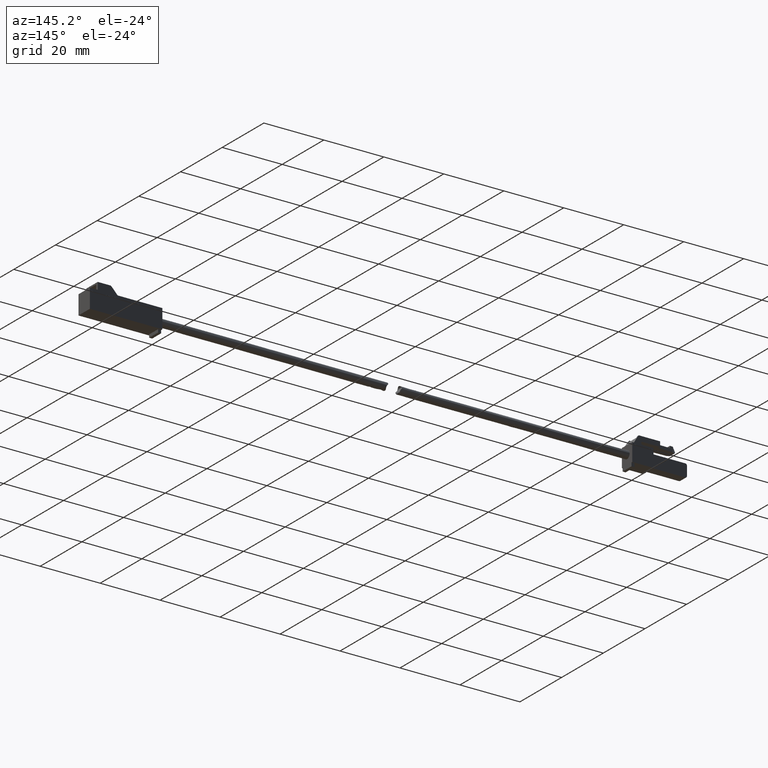
[diagram: clean part render]
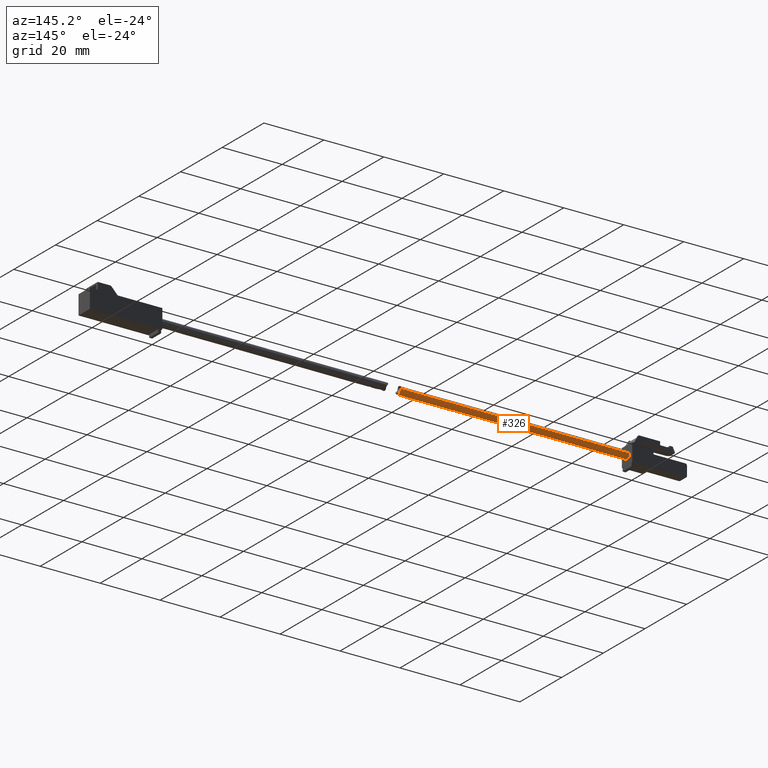
[diagram: same view with one face highlighted and labeled with its STEP entity id]
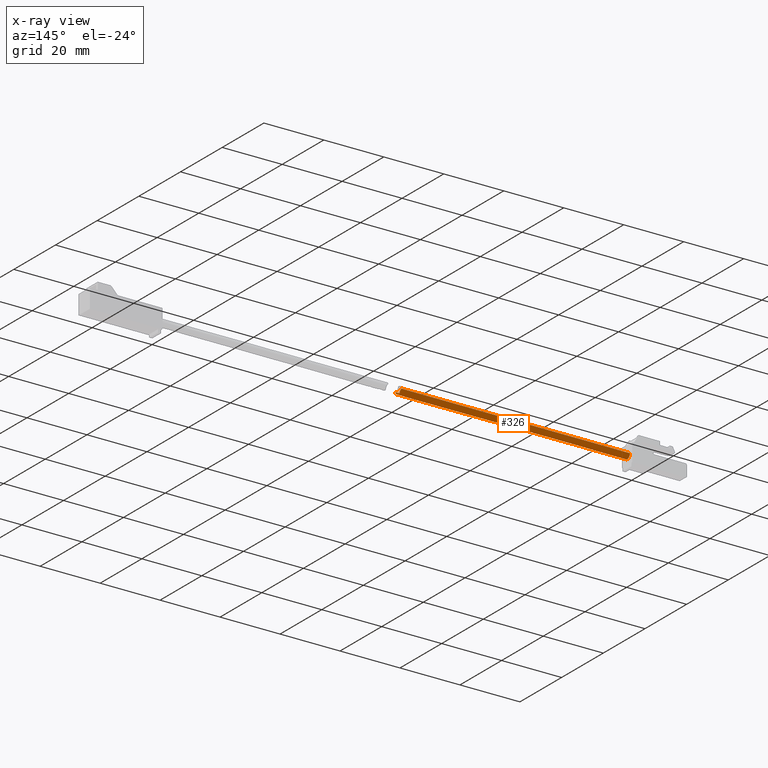
[diagram: x-ray of the same camera — body ghosted, the highlighted face saturated]
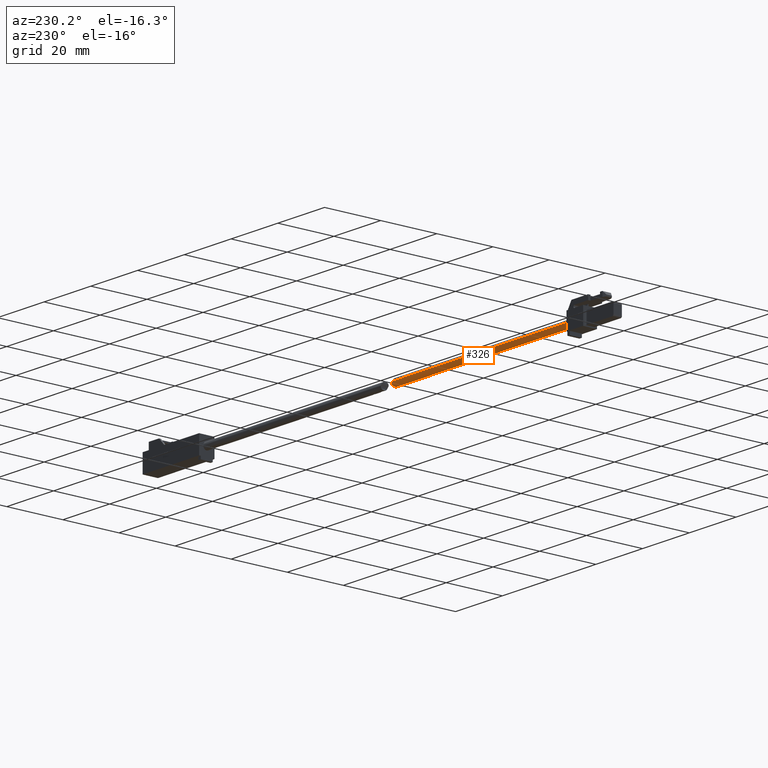
[diagram: same view with one face highlighted and labeled with its STEP entity id]
A machine part, auxiliary view. The second image highlights one B-rep face of the part: STEP entity #326.
The next image is the same camera in x-ray: the body ghosted, the highlighted face saturated — about 0% of this face is hidden behind the body in this view.
A second angle (auxiliary view) of the same face is appended — the face is thin or edge-on in the first view.
In plain terms, the highlighted face is a freeform B-spline surface patch.
Its self-contained STEP definition (entity closure, byte-faithful):
#19=CARTESIAN_POINT('',(-2.300000000000000,1.249999999999530,2.816595E-016));
#20=VERTEX_POINT('',#19);
#28=CARTESIAN_POINT('',(-2.197703587288286,-1.246146683450683,-0.098073915507565));
#29=VERTEX_POINT('',#28);
#39=CARTESIAN_POINT('',(-2.197703587288286,-1.246146683450683,-0.098073915507565));
#40=CARTESIAN_POINT('',(-2.185782413458197,-1.245072543111019,-0.111723513627514));
#41=CARTESIAN_POINT('',(-2.174324032663256,-1.243740976383480,-0.125777891205695));
#42=CARTESIAN_POINT('',(-2.150152399444206,-1.240150894217720,-0.157575884010219));
#43=CARTESIAN_POINT('',(-2.137587745248053,-1.237746024540212,-0.175586971182269));
#44=CARTESIAN_POINT('',(-2.102391724294224,-1.229086220610575,-0.230718967803821));
#45=CARTESIAN_POINT('',(-2.082384264155761,-1.221451035759141,-0.268638884079528));
#46=CARTESIAN_POINT('',(-2.057204897359141,-1.206645900087304,-0.326967884832802));
#47=CARTESIAN_POINT('',(-2.049620526136303,-1.201151445529674,-0.346653849750198));
#48=CARTESIAN_POINT('',(-2.036047233575883,-1.188936580613859,-0.386475733568241));
#49=CARTESIAN_POINT('',(-2.030039941074703,-1.182178500881842,-0.406705290797513));
#50=CARTESIAN_POINT('',(-2.014672526968635,-1.160324731184317,-0.466869904066858));
#51=CARTESIAN_POINT('',(-2.007834449006401,-1.143597052290673,-0.506532353235339));
#52=CARTESIAN_POINT('',(-2.000047393343356,-1.105650132167661,-0.584745266418899));
#53=CARTESIAN_POINT('',(-1.999139374120442,-1.084237957922289,-0.623571422937116));
#54=CARTESIAN_POINT('',(-2.002452720152221,-1.037997499711809,-0.697835552834510));
#55=CARTESIAN_POINT('',(-2.006615844592895,-1.013126269333457,-0.733450871297083));
#56=CARTESIAN_POINT('',(-2.018983361681790,-0.959942353971602,-0.801801531177355));
#57=CARTESIAN_POINT('',(-2.027253799614945,-0.931480907841922,-0.834658308277487));
#58=CARTESIAN_POINT('',(-2.056235751460511,-0.843091401251553,-0.926791121989664));
#59=CARTESIAN_POINT('',(-2.081159588162684,-0.779673038228312,-0.980549406130930));
#60=CARTESIAN_POINT('',(-2.122311456749226,-0.677473750735115,-1.051306838405805));
#61=CARTESIAN_POINT('',(-2.136717463016618,-0.642094983922010,-1.073271701790091));
#62=CARTESIAN_POINT('',(-2.165507032297764,-0.570012268132028,-1.113231391514372));
#63=CARTESIAN_POINT('',(-2.179946675246814,-0.533179737340535,-1.131331175330846));
#64=CARTESIAN_POINT('',(-2.208008731032904,-0.457673552880847,-1.163926880269215));
#65=CARTESIAN_POINT('',(-2.221636055987656,-0.419002006019938,-1.178423597482248));
#66=CARTESIAN_POINT('',(-2.246950718593400,-0.339394740158768,-1.203767448427925));
#67=CARTESIAN_POINT('',(-2.258685979961521,-0.298210537216375,-1.214653057001899));
#68=CARTESIAN_POINT('',(-2.278317908500439,-0.214896548693261,-1.232124608312109));
#69=CARTESIAN_POINT('',(-2.286259964890770,-0.172646552497843,-1.238772931898442));
#70=CARTESIAN_POINT('',(-2.294418586061707,-0.108213386999522,-1.245494334762031));
#71=CARTESIAN_POINT('',(-2.296513083925073,-0.086559173581023,-1.247191216253681));
#72=CARTESIAN_POINT('',(-2.299319051363220,-0.042870537355216,-1.249456097419914));
#73=CARTESIAN_POINT('',(-2.300024922533960,-0.020747115649442,-1.250019977845877));
#74=CARTESIAN_POINT('',(-2.299896816676956,0.088845394679168,-1.249917279566500));
#75=CARTESIAN_POINT('',(-2.287958062092116,0.174469806817529,-1.240728774839407));
#76=CARTESIAN_POINT('',(-2.248202641099639,0.342205259053392,-1.205297960501625));
#77=CARTESIAN_POINT('',(-2.221695874154388,0.420912699519135,-1.179868940310255));
#78=CARTESIAN_POINT('',(-2.179596984373239,0.534086613929089,-1.130902752438372));
#79=CARTESIAN_POINT('',(-2.165129930116893,0.570970122158411,-1.112746225082192));
#80=CARTESIAN_POINT('',(-2.136236119684083,0.643286178403536,-1.072564187698500));
#81=CARTESIAN_POINT('',(-2.121941959521678,0.678386024216780,-1.050710106541648));
#82=CARTESIAN_POINT('',(-2.081026654996795,0.780014238944487,-0.980242375140572));
#83=CARTESIAN_POINT('',(-2.056160459278299,0.843286603496433,-0.926621590684600));
#84=CARTESIAN_POINT('',(-2.027174050815090,0.931741560899679,-0.834369600480567));
#85=CARTESIAN_POINT('',(-2.018920977522754,0.960182550180733,-0.801507586211123));
#86=CARTESIAN_POINT('',(-2.006603433026471,1.013208108167032,-0.733330942128864));
#87=CARTESIAN_POINT('',(-2.002456435175281,1.038004796193899,-0.697816243338594));
#88=CARTESIAN_POINT('',(-1.999144475239803,1.084108456566257,-0.623787080002903));
#89=CARTESIAN_POINT('',(-2.000041568638022,1.105573423945592,-0.584888415088782));
#90=CARTESIAN_POINT('',(-2.007806643422295,1.143509469319251,-0.506727883125430));
#91=CARTESIAN_POINT('',(-2.014612332009462,1.160135241973207,-0.467297094493345));
#92=CARTESIAN_POINT('',(-2.029730351707489,1.181788428166470,-0.407824962718867));
#93=CARTESIAN_POINT('',(-2.035590467644217,1.188457625566541,-0.387946725776752));
#94=CARTESIAN_POINT('',(-2.049079550934947,1.200727675405017,-0.348119576097644));
#95=CARTESIAN_POINT('',(-2.056757930026439,1.206349438906517,-0.328072181703095));
#96=CARTESIAN_POINT('',(-2.082092541801532,1.221344511017660,-0.269181878610022));
#97=CARTESIAN_POINT('',(-2.102106823552305,1.228973274423302,-0.231269455601057));
#98=CARTESIAN_POINT('',(-2.148500555071759,1.240472930651238,-0.158391219727604));
#99=CARTESIAN_POINT('',(-2.175154113231522,1.244350471988203,-0.123146480366650));
#100=CARTESIAN_POINT('',(-2.233699889804818,1.249092581529827,-0.057800306142103));
#101=CARTESIAN_POINT('',(-2.265545421407985,1.250000000017405,-0.027621087124735));
#102=CARTESIAN_POINT('',(-2.300000000000000,1.249999999999530,2.816595E-016));
#103=B_SPLINE_CURVE_WITH_KNOTS('',3,(#39,#40,#41,#42,#43,#44,#45,#46,#47,#48,#49,#50,#51,#52,#53,#54,#55,#56,#57,#58,#59,#60,#61,#62,#63,#64,#65,#66,#67,#68,#69,#70,#71,#72,#73,#74,#75,#76,#77,#78,#79,#80,#81,#82,#83,#84,#85,#86,#87,#88,#89,#90,#91,#92,#93,#94,#95,#96,#97,#98,#99,#100,#101,#102),.UNSPECIFIED.,.F.,.U.,(4,2,2,2,2,2,2,2,2,2,2,2,2,2,2,2,2,2,2,2,2,2,2,2,2,2,2,2,2,2,2,4),(0.033844311896491,0.046875000000000,0.062500000000000,0.093749999999999,0.109374999999999,0.124999999999999,0.156249999999999,0.187499999999999,0.218749999999999,0.249999999999999,0.312499999999999,0.343749999999998,0.374999999999998,0.406249999999998,0.437499999999998,0.468749999999998,0.484374999999998,0.499999999999998,0.562499999999998,0.624999999999998,0.656249999999998,0.687499999999999,0.749999999999999,0.781249999999999,0.812499999999999,0.843749999999999,0.874999999999999,0.890624999999999,0.906249999999999,0.937499999999999,0.968750000000000,1.0),.UNSPECIFIED.);
#104=EDGE_CURVE('',#29,#20,#103,.T.);
#124=CARTESIAN_POINT('',(-2.402294953251520,1.246146447890810,0.098073873213586));
#125=VERTEX_POINT('',#124);
#126=CARTESIAN_POINT('',(-2.402294953251520,1.246146447890810,0.098073873213586));
#127=CARTESIAN_POINT('',(-2.400070123243016,1.246347270529622,0.095525523526263));
#128=CARTESIAN_POINT('',(-2.397829347704910,1.246538975255356,0.092991821916617));
#129=CARTESIAN_POINT('',(-2.366300117965674,1.249092716896253,0.057800310032571));
#130=CARTESIAN_POINT('',(-2.334454582486053,1.250000067771847,0.027621089067394));
#131=CARTESIAN_POINT('',(-2.300000000000000,1.249999999999530,2.816595E-016));
#132=B_SPLINE_CURVE_WITH_KNOTS('',3,(#126,#127,#128,#129,#130,#131),.UNSPECIFIED.,.F.,.U.,(4,2,4),(0.966341268069300,0.968750000000000,1.0),.UNSPECIFIED.);
#133=EDGE_CURVE('',#125,#20,#132,.T.);
#224=CARTESIAN_POINT('',(-78.542103939511691,1.246146667071423,0.098073870866739));
#225=VERTEX_POINT('',#224);
#226=CARTESIAN_POINT('',(-78.542103939511691,1.246146667071423,0.098073870866739));
#227=CARTESIAN_POINT('',(-2.402294953251520,1.246146447890810,0.098073873213586));
#228=QUASI_UNIFORM_CURVE('',1,(#226,#227),.UNSPECIFIED.,.F.,.U.);
#229=EDGE_CURVE('',#225,#125,#228,.T.);
#246=CARTESIAN_POINT('',(-78.542103939511691,-1.246146667071423,-0.098073870866719));
#247=VERTEX_POINT('',#246);
#263=CARTESIAN_POINT('',(-78.542103939511691,-1.246146667071423,-0.098073870866719));
#264=CARTESIAN_POINT('',(-2.197703587288286,-1.246146683450683,-0.098073915507565));
#265=QUASI_UNIFORM_CURVE('',1,(#263,#264),.UNSPECIFIED.,.F.,.U.);
#266=EDGE_CURVE('',#247,#29,#265,.T.);
#272=CARTESIAN_POINT('',(-80.455560768116257,-1.246146667166409,-0.098073869659796));
#273=CARTESIAN_POINT('',(-80.455560768116257,-1.148072797506603,-1.344220536826206));
#274=CARTESIAN_POINT('',(-80.455560768116257,0.098073869659806,-1.246146667166400));
#275=CARTESIAN_POINT('',(-80.455560768116257,1.344220536826216,-1.148072797506593));
#276=CARTESIAN_POINT('',(-80.455560768116257,1.246146667166409,0.098073869659816));
#277=CARTESIAN_POINT('',(-0.042537546009797,-1.246146667166409,-0.098073869659806));
#278=CARTESIAN_POINT('',(-0.042537546009797,-1.148072797506603,-1.344220536826216));
#279=CARTESIAN_POINT('',(-0.042537546009797,0.098073869659806,-1.246146667166409));
#280=CARTESIAN_POINT('',(-0.042537546009797,1.344220536826216,-1.148072797506603));
#281=CARTESIAN_POINT('',(-0.042537546009797,1.246146667166409,0.098073869659806));
#289=(BOUNDED_SURFACE()B_SPLINE_SURFACE(2,1,((#272,#277),(#273,#278),(#274,#279),(#275,#280),(#276,#281)),.UNSPECIFIED.,.F.,.F.,.U.)B_SPLINE_SURFACE_WITH_KNOTS((3,2,3),(2,2),(0.0,1.570796326794897,3.141592653589793),(0.0,80.413023222106474),.UNSPECIFIED.)GEOMETRIC_REPRESENTATION_ITEM()RATIONAL_B_SPLINE_SURFACE(((1.0,1.0),(0.707106781186548,0.707106781186548),(1.0,1.0),(0.707106781186548,0.707106781186548),(1.0,1.0)))REPRESENTATION_ITEM('')SURFACE());
#290=ORIENTED_EDGE('',*,*,#133,.T.);
#291=ORIENTED_EDGE('',*,*,#104,.F.);
#292=ORIENTED_EDGE('',*,*,#266,.F.);
#293=CARTESIAN_POINT('',(-78.542103939511691,0.0,-1.249999999999991));
#294=VERTEX_POINT('',#293);
#295=CARTESIAN_POINT('',(-78.542103939511691,0.0,-1.249999999999991));
#296=CARTESIAN_POINT('',(-78.542103939511676,-1.155488113450180,-1.249999999999990));
#297=CARTESIAN_POINT('',(-78.542103939511705,-1.246146667071423,-0.098073870866719));
#305=(BOUNDED_CURVE()B_SPLINE_CURVE(2,(#295,#296,#297),.UNSPECIFIED.,.F.,.U.)B_SPLINE_CURVE_WITH_KNOTS((3,3),(0.0,0.236331300466738),.UNSPECIFIED.)CURVE()GEOMETRIC_REPRESENTATION_ITEM()RATIONAL_B_SPLINE_CURVE((1.0,0.723120658799712,0.969723355825326))REPRESENTATION_ITEM(''));
#306=EDGE_CURVE('',#294,#247,#305,.T.);
#307=ORIENTED_EDGE('',*,*,#306,.F.);
#308=CARTESIAN_POINT('',(-78.542103939511691,1.246146667071423,0.098073870866738));
#309=CARTESIAN_POINT('',(-78.542103939511676,1.250000000000000,0.049112634365858));
#310=CARTESIAN_POINT('',(-78.542103939511691,1.250000000000000,9.618316E-015));
#311=CARTESIAN_POINT('',(-78.542103939511691,1.250000000000000,-1.249999999999991));
#312=CARTESIAN_POINT('',(-78.542103939511691,0.0,-1.249999999999991));
#320=(BOUNDED_CURVE()B_SPLINE_CURVE(2,(#308,#309,#310,#311,#312),.UNSPECIFIED.,.F.,.U.)B_SPLINE_CURVE_WITH_KNOTS((3,2,3),(0.736331300466738,0.750000000000000,1.0),.UNSPECIFIED.)CURVE()GEOMETRIC_REPRESENTATION_ITEM()RATIONAL_B_SPLINE_CURVE((0.969723355825326,0.983986122386836,1.0,0.707106781186548,1.0))REPRESENTATION_ITEM(''));
#321=EDGE_CURVE('',#225,#294,#320,.T.);
#322=ORIENTED_EDGE('',*,*,#321,.F.);
#323=ORIENTED_EDGE('',*,*,#229,.T.);
#324=EDGE_LOOP('',(#290,#291,#292,#307,#322,#323));
#325=FACE_OUTER_BOUND('',#324,.T.);
#326=ADVANCED_FACE('',(#325),#289,.T.);